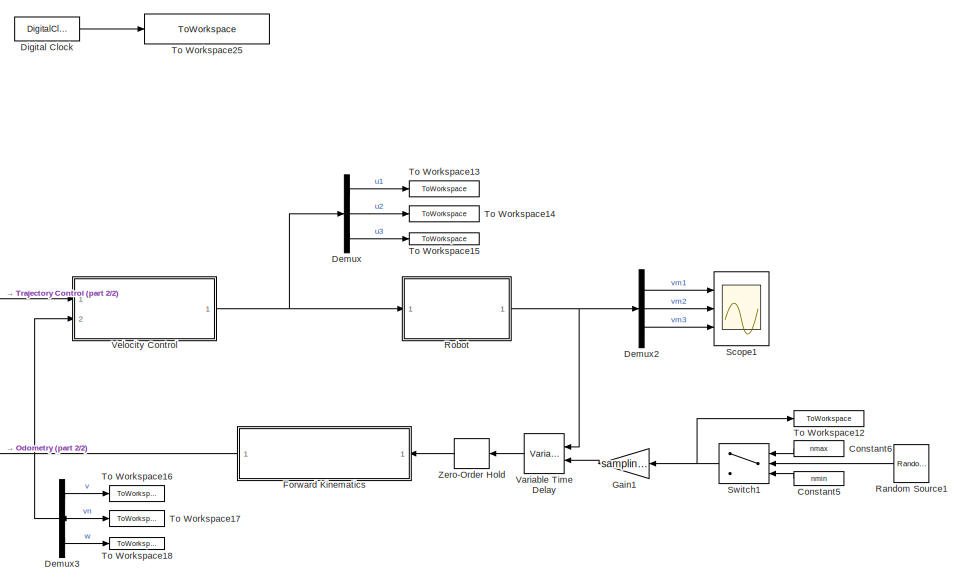
[diagram: root canvas - part 1/2, right side, full height]
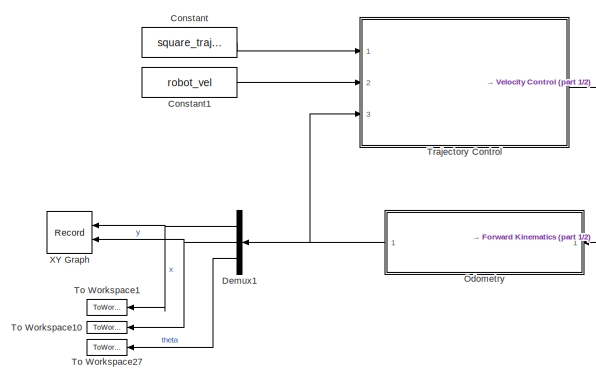
[diagram: root canvas - part 2/2, bottom left region]
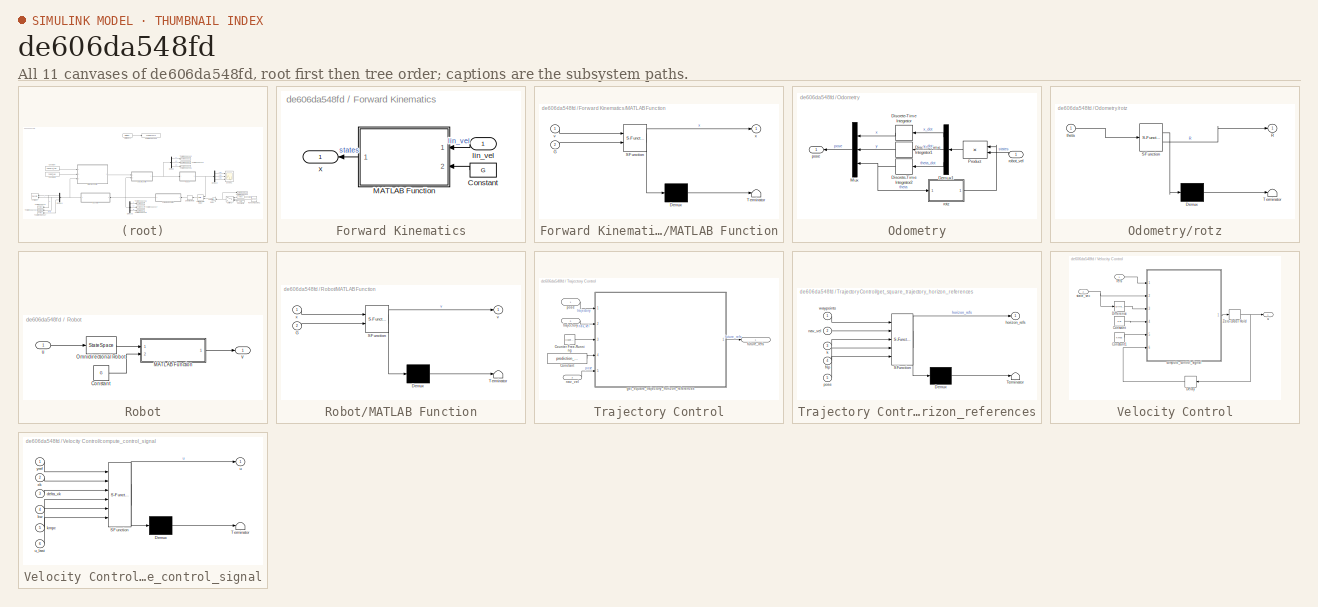
[diagram: thumbnail index - all 11 canvases of the model, root first then tree order]
MODEL slx_de606da548fd
KIND model
CONFIG AbsTol = auto
CONFIG EnableMultiTasking = off
CONFIG FixedStep = auto
CONFIG MaxStep = auto
CONFIG MinStep = auto
CONFIG RelTol = 1e-3
CONFIG SampleTimeConstraint = Unconstrained
CONFIG SolverName = VariableStepAuto
CONFIG StartTime = 0.0
CONFIG StopTime = sim_time
BLOCK [Constant] Constant
  Value = square_trajectory
  VectorParams1D = off
BLOCK [Constant] Constant1
  Value = robot_vel
  VectorParams1D = off
BLOCK [Constant] Constant5
  NameLocation = top
  Value = nmin
BLOCK [Constant] Constant6
  NameLocation = top
  Value = nmax
BLOCK [Demux] Demux
  Outputs = 3
  Ports = [1, 3]
BLOCK [Demux] Demux1
  Outputs = 3
  Ports = [1, 3]
BLOCK [Demux] Demux2
  Outputs = 3
  Ports = [1, 3]
BLOCK [Demux] Demux3
  Outputs = 3
  Ports = [1, 3]
BLOCK [DigitalClock] Digital Clock
  SampleTime = sampling_period
BLOCK [SubSystem] Forward Kinematics
  Ports = [1, 1]
  RequestExecContextInheritance = off
BLOCK [Constant] Forward Kinematics/Constant
  Value = G
  VectorParams1D = off
BLOCK [SubSystem] Forward Kinematics/MATLAB Function
  ErrorFcn = Stateflow.Translate.translate
  PermitHierarchicalResolution = ExplicitOnly
  Ports = [2, 1]
  RequestExecContextInheritance = off
  SFBlockType = MATLAB Function
  TreatAsAtomicUnit = on
BLOCK [Demux] Forward Kinematics/MATLAB Function/ Demux 
  Outputs = 1
  Ports = [1, 1]
BLOCK [S-Function] Forward Kinematics/MATLAB Function/ SFunction 
  EnableBusSupport = on
  FunctionName = sf_sfun
  PortCounts = [2 2]
  Ports = [2, 2]
  SFcnIsStateOwnerBlock = off
  SFunctionDeploymentMode = off
  Tag = Stateflow S-Function 1
BLOCK [Terminator] Forward Kinematics/MATLAB Function/ Terminator 
BLOCK [Inport] Forward Kinematics/MATLAB Function/G
  Port = 2
BLOCK [Inport] Forward Kinematics/MATLAB Function/v
BLOCK [Outport] Forward Kinematics/MATLAB Function/x
BLOCK [Inport] Forward Kinematics/lin_vel
  IconDisplay = Signal name
BLOCK [Outport] Forward Kinematics/x
  IconDisplay = Signal name
BLOCK [Gain] Gain1
  Gain = sampling_period
  NameLocation = top
BLOCK [SubSystem] Odometry
  Ports = [1, 1]
  RequestExecContextInheritance = off
BLOCK [Demux] Odometry/Demux1
  NameLocation = top
  Outputs = 3
  Ports = [1, 3]
BLOCK [DiscreteIntegrator] Odometry/Discrete-Time Integrator
  ICPrevOutput = DiscIntNeverNeededParam
  ICPrevScaledInput = DiscIntNeverNeededParam
  InitialConditionSetting = Auto
  Ports = [1, 1]
  SampleTime = sampling_period
BLOCK [DiscreteIntegrator] Odometry/Discrete-Time Integrator1
  ICPrevOutput = DiscIntNeverNeededParam
  ICPrevScaledInput = DiscIntNeverNeededParam
  InitialConditionSetting = Auto
  Ports = [1, 1]
  SampleTime = sampling_period
BLOCK [DiscreteIntegrator] Odometry/Discrete-Time Integrator2
  ICPrevOutput = DiscIntNeverNeededParam
  ICPrevScaledInput = DiscIntNeverNeededParam
  InitialConditionSetting = Auto
  Ports = [1, 1]
  SampleTime = sampling_period
BLOCK [Mux] Odometry/Mux
  DisplayOption = bar
  Inputs = 3
  Ports = [3, 1]
BLOCK [Product] Odometry/Product
  Multiplication = Matrix(*)
  Ports = [2, 1]
BLOCK [Outport] Odometry/pose
  IconDisplay = Signal name
BLOCK [Inport] Odometry/robot_vel
  IconDisplay = Signal name
BLOCK [SubSystem] Odometry/rotz
  ErrorFcn = Stateflow.Translate.translate
  PermitHierarchicalResolution = ExplicitOnly
  Ports = [1, 1]
  RequestExecContextInheritance = off
  SFBlockType = MATLAB Function
  SystemSampleTime = sampling_period
  TreatAsAtomicUnit = on
BLOCK [Demux] Odometry/rotz/ Demux 
  Outputs = 1
  Ports = [1, 1]
BLOCK [S-Function] Odometry/rotz/ SFunction 
  EnableBusSupport = on
  FunctionName = sf_sfun
  PortCounts = [1 2]
  Ports = [1, 2]
  SFcnIsStateOwnerBlock = off
  SFunctionDeploymentMode = off
  Tag = Stateflow S-Function 3
BLOCK [Terminator] Odometry/rotz/ Terminator 
BLOCK [Outport] Odometry/rotz/R
BLOCK [Inport] Odometry/rotz/theta
BLOCK [Reference] Random Source1  REF=dspsrcs4/Random
Source
  NameLocation = top
  Ports = [0, 1]
  SourceBlock = dspsrcs4/Random\nSource
  SourceProductBaseCode = DS
  SourceType = Random Source
  UserDataPersistent = on
BLOCK [SubSystem] Robot
  Ports = [1, 1]
  RequestExecContextInheritance = off
BLOCK [Constant] Robot/Constant
  Value = G
  VectorParams1D = off
BLOCK [SubSystem] Robot/MATLAB Function
  ErrorFcn = Stateflow.Translate.translate
  PermitHierarchicalResolution = ExplicitOnly
  Ports = [2, 1]
  RequestExecContextInheritance = off
  SFBlockType = MATLAB Function
  TreatAsAtomicUnit = on
BLOCK [Demux] Robot/MATLAB Function/ Demux 
  Outputs = 1
  Ports = [1, 1]
BLOCK [S-Function] Robot/MATLAB Function/ SFunction 
  EnableBusSupport = on
  FunctionName = sf_sfun
  PortCounts = [2 2]
  Ports = [2, 2]
  SFcnIsStateOwnerBlock = off
  SFunctionDeploymentMode = off
  Tag = Stateflow S-Function 2
BLOCK [Terminator] Robot/MATLAB Function/ Terminator 
BLOCK [Inport] Robot/MATLAB Function/G
  Port = 2
BLOCK [Outport] Robot/MATLAB Function/v
BLOCK [Inport] Robot/MATLAB Function/x
BLOCK [StateSpace] Robot/Omnidirectional Robot
  A = robot_continous_model.A
  B = robot_continous_model.B
  C = robot_continous_model.C
  ContinuousStateAttributes = states
  D = robot_continous_model.D
  InitialCondition = [0; 0; 0]
  Ports = [1, 1]
BLOCK [Inport] Robot/u
BLOCK [Outport] Robot/v
BLOCK [Scope] Scope1
  Floating = off
  NumInputPorts = 3
  Ports = [3]
  ScopeSpecificationString = Simulink.scopes.TimeScopeBlockCfg('CurrentConfiguration', extmgr.ConfigurationSet(extmgr.Configuration('Core','General UI',true),extmgr.Configuration('Core','Source UI',true),extmgr.Configuration('Sources','WiredSimulink',true,'DataLoggingVariableName','ScopeData1'),extmgr.Configuration('Visuals','Time Domain',true,'SerializedDisplays',{struct('MinYLimReal','0.40435','MaxYLimReal','0.41718','YLabe...<+1419ch>
BLOCK [Switch] Switch1
  InputSameDT = off
  NameLocation = top
  SaturateOnIntegerOverflow = off
  Threshold = nmax
  ZeroCross = off
BLOCK [ToWorkspace] To Workspace1
  FixptAsFi = on
  MaxDataPoints = inf
  Ports = [1]
  SampleTime = -1
  VariableName = x
BLOCK [ToWorkspace] To Workspace10
  FixptAsFi = on
  MaxDataPoints = inf
  Ports = [1]
  SampleTime = -1
  VariableName = y
BLOCK [ToWorkspace] To Workspace12
  FixptAsFi = on
  MaxDataPoints = inf
  Ports = [1]
  SampleTime = -1
  Save2DSignal = 2-D array (concatenate along first dimension)
  VariableName = nvar
BLOCK [ToWorkspace] To Workspace13
  FixptAsFi = on
  MaxDataPoints = inf
  Ports = [1]
  SampleTime = -1
  VariableName = u1
BLOCK [ToWorkspace] To Workspace14
  FixptAsFi = on
  MaxDataPoints = inf
  Ports = [1]
  SampleTime = -1
  VariableName = u2
BLOCK [ToWorkspace] To Workspace15
  FixptAsFi = on
  MaxDataPoints = inf
  Ports = [1]
  SampleTime = -1
  VariableName = u3
BLOCK [ToWorkspace] To Workspace16
  FixptAsFi = on
  MaxDataPoints = inf
  Ports = [1]
  SampleTime = -1
  Save2DSignal = 2-D array (concatenate along first dimension)
  VariableName = v
BLOCK [ToWorkspace] To Workspace17
  FixptAsFi = on
  MaxDataPoints = inf
  Ports = [1]
  SampleTime = -1
  Save2DSignal = 2-D array (concatenate along first dimension)
  VariableName = vn
BLOCK [ToWorkspace] To Workspace18
  FixptAsFi = on
  MaxDataPoints = inf
  Ports = [1]
  SampleTime = -1
  Save2DSignal = 2-D array (concatenate along first dimension)
  VariableName = w
BLOCK [ToWorkspace] To Workspace25
  FixptAsFi = on
  MaxDataPoints = inf
  Ports = [1]
  SampleTime = sampling_period
  Save2DSignal = 2-D array (concatenate along first dimension)
  VariableName = sim_time_sampled
BLOCK [ToWorkspace] To Workspace27
  FixptAsFi = on
  MaxDataPoints = inf
  Ports = [1]
  SampleTime = -1
  VariableName = theta
BLOCK [SubSystem] Trajectory Control
  Ports = [3, 1]
  RequestExecContextInheritance = off
BLOCK [Constant] Trajectory Control/Constant
  Value = prediction_horizon
  VectorParams1D = off
BLOCK [Reference] Trajectory Control/Counter Free-Running  REF=simulink/Sources/Counter
Free-Running
  Ports = [0, 1]
  SourceBlock = simulink/Sources/Counter\nFree-Running
  SourceProductBaseCode = SL
  SourceType = Counter Free-Running
BLOCK [Outport] Trajectory Control/future_refs
  IconDisplay = Signal name
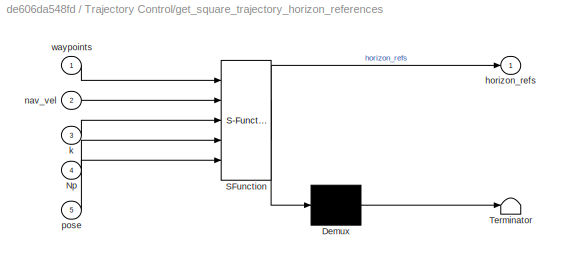
BLOCK [SubSystem] Trajectory Control/get_square_trajectory_horizon_references
  ErrorFcn = Stateflow.Translate.translate
  PermitHierarchicalResolution = ExplicitOnly
  Ports = [5, 1]
  RequestExecContextInheritance = off
  SFBlockType = MATLAB Function
  SystemSampleTime = sampling_period
  TreatAsAtomicUnit = on
BLOCK [Demux] Trajectory Control/get_square_trajectory_horizon_references/ Demux 
  Outputs = 1
  Ports = [1, 1]
BLOCK [S-Function] Trajectory Control/get_square_trajectory_horizon_references/ SFunction 
  EnableBusSupport = on
  FunctionName = sf_sfun
  PortCounts = [5 2]
  Ports = [5, 2]
  SFcnIsStateOwnerBlock = off
  SFunctionDeploymentMode = off
  Tag = Stateflow S-Function 4
BLOCK [Terminator] Trajectory Control/get_square_trajectory_horizon_references/ Terminator 
BLOCK [Inport] Trajectory Control/get_square_trajectory_horizon_references/Np
  Port = 4
BLOCK [Outport] Trajectory Control/get_square_trajectory_horizon_references/horizon_refs
BLOCK [Inport] Trajectory Control/get_square_trajectory_horizon_references/k
  Port = 3
BLOCK [Inport] Trajectory Control/get_square_trajectory_horizon_references/nav_vel
  Port = 2
BLOCK [Inport] Trajectory Control/get_square_trajectory_horizon_references/pose
  Port = 5
BLOCK [Inport] Trajectory Control/get_square_trajectory_horizon_references/waypoints
BLOCK [Inport] Trajectory Control/nav_vel
  IconDisplay = Signal name
  Port = 3
BLOCK [Inport] Trajectory Control/pose
  IconDisplay = Signal name
BLOCK [Inport] Trajectory Control/trajectory
  IconDisplay = Signal name
  Port = 2
  SampleTime = sampling_period
BLOCK [VariableTransportDelay] Variable Time Delay
  MaximumDelay = 10
  Ports = [2, 1]
  ZeroDelay = on
BLOCK [SubSystem] Velocity Control
  Ports = [2, 1]
  RequestExecContextInheritance = off
BLOCK [Constant] Velocity Control/Constant
  Value = Kw
  VectorParams1D = off
BLOCK [Constant] Velocity Control/Constant1
  Value = Kmpc
  VectorParams1D = off
BLOCK [Delay] Velocity Control/Delay
  DelayLength = 1
  InitialCondition = 0
  InputPortMap = u0
  Ports = [1, 1]
BLOCK [Reference] Velocity Control/Difference  REF=simulink/Discrete/Difference
  Ports = [1, 1]
  SourceBlock = simulink/Discrete/Difference
  SourceProductBaseCode = SL
  SourceType = Difference
BLOCK [ZeroOrderHold] Velocity Control/Zero-Order Hold
  SampleTime = sampling_period
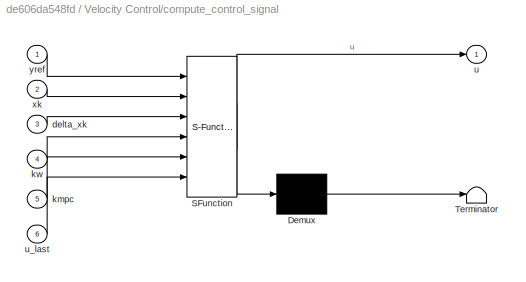
BLOCK [SubSystem] Velocity Control/compute_control_signal
  ErrorFcn = Stateflow.Translate.translate
  PermitHierarchicalResolution = ExplicitOnly
  Ports = [6, 1]
  RequestExecContextInheritance = off
  SFBlockType = MATLAB Function
  TreatAsAtomicUnit = on
BLOCK [Demux] Velocity Control/compute_control_signal/ Demux 
  Outputs = 1
  Ports = [1, 1]
BLOCK [S-Function] Velocity Control/compute_control_signal/ SFunction 
  EnableBusSupport = on
  FunctionName = sf_sfun
  PortCounts = [6 2]
  Ports = [6, 2]
  SFcnIsStateOwnerBlock = off
  SFunctionDeploymentMode = off
  Tag = Stateflow S-Function 5
BLOCK [Terminator] Velocity Control/compute_control_signal/ Terminator 
BLOCK [Inport] Velocity Control/compute_control_signal/delta_xk
  Port = 3
BLOCK [Inport] Velocity Control/compute_control_signal/kmpc
  Port = 5
BLOCK [Inport] Velocity Control/compute_control_signal/kw
  Port = 4
BLOCK [Outport] Velocity Control/compute_control_signal/u
BLOCK [Inport] Velocity Control/compute_control_signal/u_last
  Port = 6
BLOCK [Inport] Velocity Control/compute_control_signal/xk
  Port = 2
BLOCK [Inport] Velocity Control/compute_control_signal/yref
BLOCK [Inport] Velocity Control/refs
  SampleTime = sampling_period
BLOCK [Inport] Velocity Control/state_vec
  Port = 2
BLOCK [Outport] Velocity Control/u
BLOCK [Record] XY Graph
  CompatibilityTag = XY
  FileSettingsInternal = {"entries":[{"content":{"excelSettings":{"content":{},"type":"Streamout.ExcelSettings"}},"type":"Streamout.FileSettingStorage","uuid":"bc52e9b3-fcb7-4fd4-94df-b800869151ce"}],"packageUris":["http://schema.mathworks.com/mf0/streamout_blocks/R2020a"],"version":"1.0"}
  Layout = [1 1]
  Ports = [2]
  SignalsInternal = {"entries":[{"content":{"signals":[{"content":{"blockPath":["robot_varying_delay/XY Graph"],"channel":[],"dimensions":[1],"domain":"robot_varying_delay/XY Graph","lineColor":"#a2142f","plots":[],"port":1,"sid":[""],"signalID":12966,"signalName":"x"},"type":"RecordBlkView.Signal","uuid":"24f03dd4-a884-4c2e-9b9d-5f76e719e564"},{"content":{"blockPath":["robot_varying_delay/XY Graph"],"channel":[],"di...<+395ch>
  VisualizationBindings = {"xyplotplugin":{"info":[{"series":[],"subplotID":1}]}}
BLOCK [ZeroOrderHold] Zero-Order Hold
  SampleTime = -1
LINE Constant1:1 -> Trajectory Control:2
LINE Constant5:1 -> Switch1:3
LINE Constant6:1 -> Switch1:1
LINE Constant:1 -> Trajectory Control:1
NET Demux1:1 -> To Workspace1:1, XY Graph:1
NET Demux1:2 -> To Workspace10:1, XY Graph:2
LINE Demux1:3 -> To Workspace27:1
LINE Demux2:1 -> Scope1:1
LINE Demux2:2 -> Scope1:2
LINE Demux2:3 -> Scope1:3
LINE Demux3:1 -> To Workspace16:1
LINE Demux3:2 -> To Workspace17:1
LINE Demux3:3 -> To Workspace18:1
LINE Demux:1 -> To Workspace13:1
LINE Demux:2 -> To Workspace14:1
LINE Demux:3 -> To Workspace15:1
LINE Digital Clock:1 -> To Workspace25:1
LINE Forward Kinematics/Constant:1 -> Forward Kinematics/MATLAB Function:2
LINE Forward Kinematics/MATLAB Function:1 -> Forward Kinematics/x:1
LINE Forward Kinematics/lin_vel:1 -> Forward Kinematics/MATLAB Function:1
NET Forward Kinematics:1 -> Demux3:1, Odometry:1, Velocity Control:2
LINE Gain1:1 -> Variable Time Delay:2
LINE Odometry/Demux1:1 -> Odometry/Discrete-Time Integrator:1
LINE Odometry/Demux1:2 -> Odometry/Discrete-Time Integrator1:1
LINE Odometry/Demux1:3 -> Odometry/Discrete-Time Integrator2:1
LINE Odometry/Discrete-Time Integrator1:1 -> Odometry/Mux:2
NET Odometry/Discrete-Time Integrator2:1 -> Odometry/Mux:3, Odometry/rotz:1
LINE Odometry/Discrete-Time Integrator:1 -> Odometry/Mux:1
LINE Odometry/Mux:1 -> Odometry/pose:1
LINE Odometry/Product:1 -> Odometry/Demux1:1
LINE Odometry/robot_vel:1 -> Odometry/Product:2
LINE Odometry/rotz:1 -> Odometry/Product:1
NET Odometry:1 -> Demux1:1, Trajectory Control:3
LINE Random Source1:1 -> Switch1:2
LINE Robot/Constant:1 -> Robot/MATLAB Function:2
LINE Robot/MATLAB Function:1 -> Robot/v:1
LINE Robot/Omnidirectional Robot:1 -> Robot/MATLAB Function:1
LINE Robot/u:1 -> Robot/Omnidirectional Robot:1
NET Robot:1 -> Demux2:1, Variable Time Delay:1
NET Switch1:1 -> Gain1:1, To Workspace12:1
LINE Trajectory Control/Constant:1 -> Trajectory Control/get_square_trajectory_horizon_references:4
LINE Trajectory Control/Counter Free-Running:1 -> Trajectory Control/get_square_trajectory_horizon_references:3
LINE Trajectory Control/get_square_trajectory_horizon_references:1 -> Trajectory Control/future_refs:1
LINE Trajectory Control/nav_vel:1 -> Trajectory Control/get_square_trajectory_horizon_references:5
LINE Trajectory Control/pose:1 -> Trajectory Control/get_square_trajectory_horizon_references:1
LINE Trajectory Control/trajectory:1 -> Trajectory Control/get_square_trajectory_horizon_references:2
LINE Trajectory Control:1 -> Velocity Control:1
LINE Variable Time Delay:1 -> Zero-Order Hold:1
LINE Velocity Control/Constant1:1 -> Velocity Control/compute_control_signal:5
LINE Velocity Control/Constant:1 -> Velocity Control/compute_control_signal:4
LINE Velocity Control/Delay:1 -> Velocity Control/compute_control_signal:6
LINE Velocity Control/Difference:1 -> Velocity Control/compute_control_signal:3
NET Velocity Control/Zero-Order Hold:1 -> Velocity Control/Delay:1, Velocity Control/u:1
LINE Velocity Control/compute_control_signal:1 -> Velocity Control/Zero-Order Hold:1
LINE Velocity Control/refs:1 -> Velocity Control/compute_control_signal:1
NET Velocity Control/state_vec:1 -> Velocity Control/Difference:1, Velocity Control/compute_control_signal:2
NET Velocity Control:1 -> Demux:1, Robot:1
LINE Zero-Order Hold:1 -> Forward Kinematics:1
note: NET lines group one-source signal fan-out (src -> all destinations, sorted); 1:1 wires keep LINE
CHART Forward Kinematics/MATLAB Function states=1 transitions=1
  STATE_LABEL 'eML_blk_kernel()'
  STATE_LABEL 'SCRIPT:\nfunction x = forward_kinematics(v, G)\n  x = G\\v;\nend\n'
CHART Robot/MATLAB Function states=1 transitions=1
  STATE_LABEL 'eML_blk_kernel()'
  STATE_LABEL 'SCRIPT:\nfunction v = inverse_kinematics(x, G)\n%INVERSE_KINEMATICS Return the linear velocities given the state vector\n  v = G*x;\nend\n'
CHART Odometry/rotz states=1 transitions=1
  STATE_LABEL 'eML_blk_kernel()'
  STATE_LABEL "SCRIPT:\nfunction R = rotz(theta)\n    %ROTZ Get the rotation matrix around z axis given the angle theta\n    R = [cos(theta) sin(theta) 0; -sin(theta) cos(theta) 0; 0 0 1]';\nend\n"
CHART Trajectory Control/get_square_trajectory_horizon_references states=1 transitions=1
  STATE_LABEL 'eML_blk_kernel()'
  STATE_LABEL 'SCRIPT:\nfunction horizon_refs = get_square_trajectory_horizon_references(waypoints, nav_vel, k, Np, pose)\n    % Future references must be in Y = [yr(k) yr(k+1) ... yr(k+N-1)]\n    horizon_refs = zeros(Np*3,1);\n \n    k=k+1;\n\n    x=pose(1);\n    y=pose(2);\n    theta=pose(3);\n    tol = 0.01;\n\n    if (k > length(waypoints))\n        return\n    end\n\n    i=1;\n    for j=k:k+Np-1\n        Rz = [cos(theta) sin...<+600ch>'
CHART Velocity Control/compute_control_signal states=1 transitions=1
  STATE_LABEL 'eML_blk_kernel()'
  STATE_LABEL 'SCRIPT:\nfunction u = compute_control_signal(yref, xk, delta_xk, kw, kmpc, u_last)\n    ksi = [delta_xk; xk];    % In this case, y[k] is the state vector due C = I\n    delta_u = kw*yref - kmpc*ksi;\n    u = delta_u(1:3,1) + u_last;\nend\n'
CHART  states=0 transitions=0
CHART  states=0 transitions=0
CHART  states=0 transitions=0
CHART  states=0 transitions=0
CHART  states=0 transitions=0
